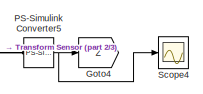
[diagram: root canvas - part 1/3, top right region]
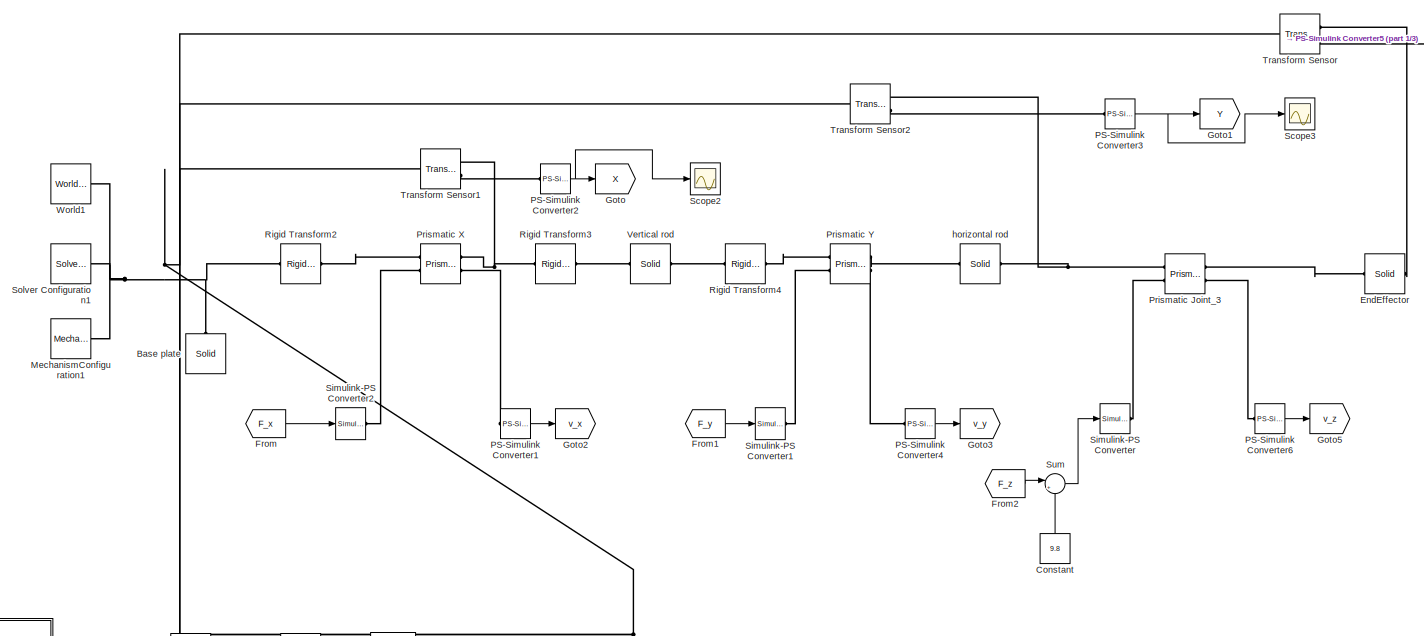
[diagram: root canvas - part 2/3, full width, top band]
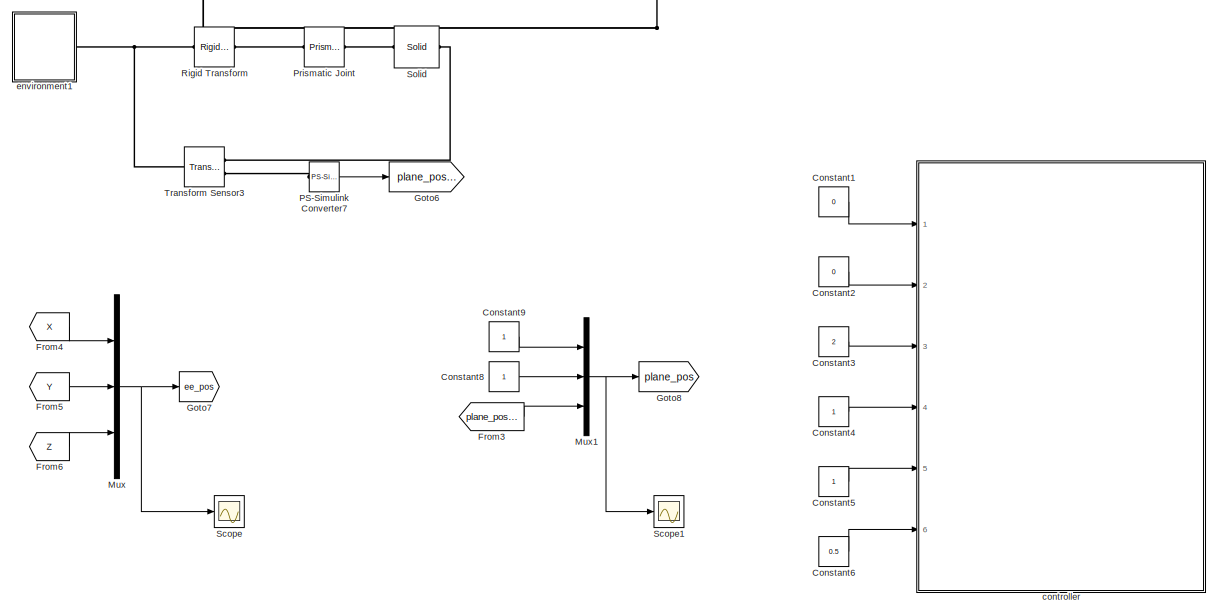
[diagram: root canvas - part 3/3, full width, bottom band]
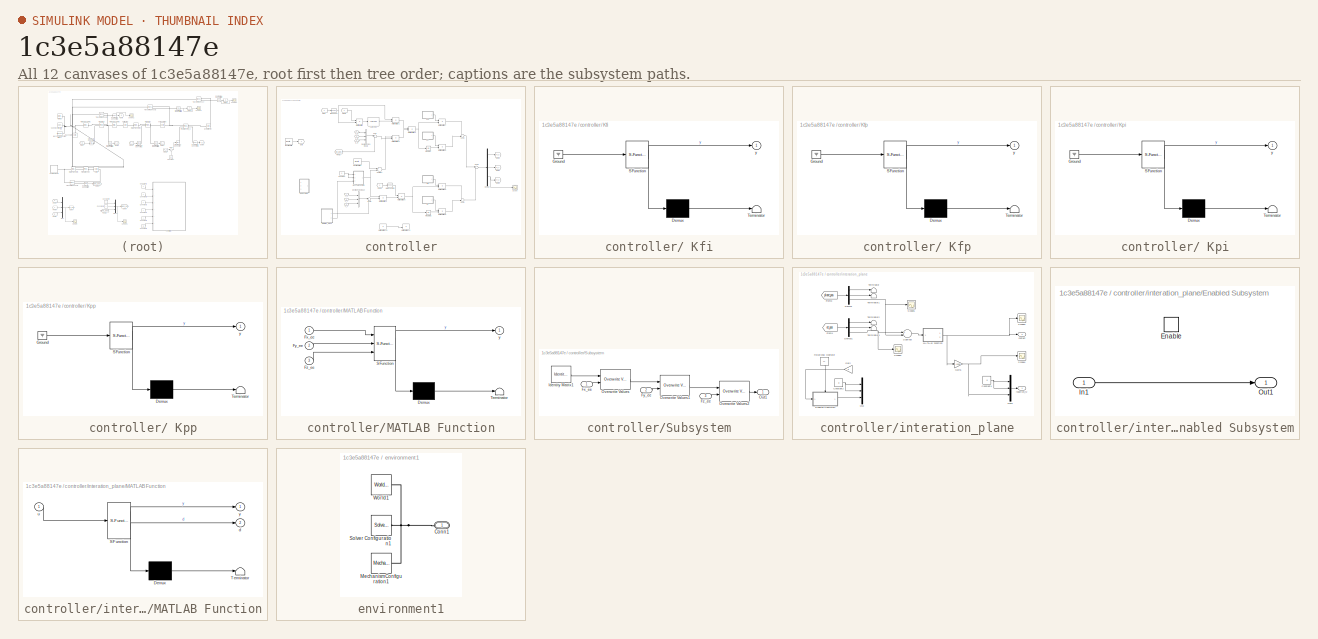
[diagram: thumbnail index - all 12 canvases of the model, root first then tree order]
MODEL slx_1c3e5a88147e
KIND model
CONFIG AbsTol = auto
CONFIG EnableMultiTasking = off
CONFIG FixedStep = auto
CONFIG MaxStep = auto
CONFIG MinStep = auto
CONFIG RelTol = 1e-3
CONFIG SampleTimeConstraint = Unconstrained
CONFIG Solver = VariableStepAuto
CONFIG SolverName = VariableStepAuto
CONFIG StartTime = 0.0
CONFIG StopTime = 30
BLOCK [Reference] Base plate   REF=sm_lib/Body Elements/Solid
  Ports = [0, 0, 0, 0, 0, 0, 1]
  SourceBlock = sm_lib/Body Elements/Solid
  SourceProductBaseCode = MS
  SourceProductName = Simscape Multibody
  SourceType = Solid
BLOCK [Constant] Constant
  Value = 9.8
BLOCK [Constant] Constant1
  Value = 0
BLOCK [Constant] Constant2
  Value = 0
BLOCK [Constant] Constant3
  Value = 2
BLOCK [Constant] Constant4
BLOCK [Constant] Constant5
BLOCK [Constant] Constant6
  Value = 0.5
BLOCK [Constant] Constant8
BLOCK [Constant] Constant9
BLOCK [Reference] EndEffector   REF=sm_lib/Body Elements/Solid
  Ports = [0, 0, 0, 0, 0, 1, 1]
  SourceBlock = sm_lib/Body Elements/Solid
  SourceProductBaseCode = MS
  SourceProductName = Simscape Multibody
  SourceType = Solid
BLOCK [From] From
  GotoTag = F_x
  TagVisibility = global
BLOCK [From] From1
  GotoTag = F_y
  TagVisibility = global
BLOCK [From] From2
  GotoTag = F_z
  TagVisibility = global
BLOCK [From] From3
  GotoTag = plane_pos_z
  TagVisibility = global
BLOCK [From] From4
  GotoTag = X
  TagVisibility = global
BLOCK [From] From5
  GotoTag = Y
  TagVisibility = global
BLOCK [From] From6
  GotoTag = Z
  TagVisibility = global
BLOCK [Goto] Goto
  GotoTag = X
  TagVisibility = global
BLOCK [Goto] Goto1
  GotoTag = Y
  TagVisibility = global
BLOCK [Goto] Goto2
  GotoTag = v_x
BLOCK [Goto] Goto3
  GotoTag = v_y
BLOCK [Goto] Goto4
  GotoTag = Z
  TagVisibility = global
BLOCK [Goto] Goto5
  GotoTag = v_z
BLOCK [Goto] Goto6
  GotoTag = plane_pos_z
  TagVisibility = global
BLOCK [Goto] Goto7
  GotoTag = ee_pos
  TagVisibility = global
BLOCK [Goto] Goto8
  GotoTag = plane_pos
  TagVisibility = global
BLOCK [Reference] MechanismConfiguration1  REF=sm_lib/Utilities/Mechanism
Configuration
  Ports = [0, 0, 0, 0, 0, 0, 1]
  SourceBlock = sm_lib/Utilities/Mechanism\nConfiguration
  SourceProductBaseCode = MS
  SourceProductName = Simscape Multibody
  SourceType = Mechanism\nConfiguration
BLOCK [Mux] Mux
  DisplayOption = bar
  Inputs = 3
  Ports = [3, 1]
BLOCK [Mux] Mux1
  DisplayOption = bar
  Inputs = 3
  Ports = [3, 1]
BLOCK [Reference] PS-Simulink Converter1  REF=nesl_utility/PS-Simulink
Converter
  Ports = [0, 1, 0, 0, 0, 1]
  SourceBlock = nesl_utility/PS-Simulink\nConverter
  SourceProductBaseCode = SS
  SourceProductName = Simscape
  SourceType = PS-Simulink\nConverter
BLOCK [Reference] PS-Simulink Converter2  REF=nesl_utility/PS-Simulink
Converter
  Ports = [0, 1, 0, 0, 0, 1]
  SourceBlock = nesl_utility/PS-Simulink\nConverter
  SourceProductBaseCode = SS
  SourceProductName = Simscape
  SourceType = PS-Simulink\nConverter
BLOCK [Reference] PS-Simulink Converter3  REF=nesl_utility/PS-Simulink
Converter
  Ports = [0, 1, 0, 0, 0, 1]
  SourceBlock = nesl_utility/PS-Simulink\nConverter
  SourceProductBaseCode = SS
  SourceProductName = Simscape
  SourceType = PS-Simulink\nConverter
BLOCK [Reference] PS-Simulink Converter4  REF=nesl_utility/PS-Simulink
Converter
  Ports = [0, 1, 0, 0, 0, 1]
  SourceBlock = nesl_utility/PS-Simulink\nConverter
  SourceProductBaseCode = SS
  SourceProductName = Simscape
  SourceType = PS-Simulink\nConverter
BLOCK [Reference] PS-Simulink Converter5  REF=nesl_utility/PS-Simulink
Converter
  Ports = [0, 1, 0, 0, 0, 1]
  SourceBlock = nesl_utility/PS-Simulink\nConverter
  SourceProductBaseCode = SS
  SourceProductName = Simscape
  SourceType = PS-Simulink\nConverter
BLOCK [Reference] PS-Simulink Converter6  REF=nesl_utility/PS-Simulink
Converter
  Ports = [0, 1, 0, 0, 0, 1]
  SourceBlock = nesl_utility/PS-Simulink\nConverter
  SourceProductBaseCode = SS
  SourceProductName = Simscape
  SourceType = PS-Simulink\nConverter
BLOCK [Reference] PS-Simulink Converter7  REF=nesl_utility/PS-Simulink
Converter
  Ports = [0, 1, 0, 0, 0, 1]
  SourceBlock = nesl_utility/PS-Simulink\nConverter
  SourceProductBaseCode = SS
  SourceProductName = Simscape
  SourceType = PS-Simulink\nConverter
BLOCK [Reference] Prismatic Joint  REF=sm_lib/Joints/Prismatic
Joint
  Ports = [0, 0, 0, 0, 0, 1, 1]
  SourceBlock = sm_lib/Joints/Prismatic\nJoint
  SourceProductBaseCode = MS
  SourceProductName = Simscape Multibody
  SourceType = Prismatic\nJoint
BLOCK [Reference] Prismatic Joint_3  REF=sm_lib/Joints/Prismatic
Joint
  Ports = [0, 0, 0, 0, 0, 2, 2]
  SourceBlock = sm_lib/Joints/Prismatic\nJoint
  SourceProductBaseCode = MS
  SourceProductName = Simscape Multibody
  SourceType = Prismatic\nJoint
BLOCK [Reference] Prismatic X  REF=sm_lib/Joints/Prismatic
Joint
  Ports = [0, 0, 0, 0, 0, 2, 2]
  SourceBlock = sm_lib/Joints/Prismatic\nJoint
  SourceProductBaseCode = MS
  SourceProductName = Simscape Multibody
  SourceType = Prismatic\nJoint
BLOCK [Reference] Prismatic Y   REF=sm_lib/Joints/Prismatic
Joint
  Ports = [0, 0, 0, 0, 0, 2, 2]
  SourceBlock = sm_lib/Joints/Prismatic\nJoint
  SourceProductBaseCode = MS
  SourceProductName = Simscape Multibody
  SourceType = Prismatic\nJoint
BLOCK [Reference] Rigid Transform  REF=sm_lib/Frames and
Transforms/Rigid
Transform
  Ports = [0, 0, 0, 0, 0, 1, 1]
  SourceBlock = sm_lib/Frames and\nTransforms/Rigid\nTransform
  SourceProductBaseCode = MS
  SourceProductName = Simscape Multibody
  SourceType = Rigid\nTransform
BLOCK [Reference] Rigid Transform2  REF=sm_lib/Frames and
Transforms/Rigid
Transform
  Ports = [0, 0, 0, 0, 0, 1, 1]
  SourceBlock = sm_lib/Frames and\nTransforms/Rigid\nTransform
  SourceProductBaseCode = MS
  SourceProductName = Simscape Multibody
  SourceType = Rigid\nTransform
BLOCK [Reference] Rigid Transform3  REF=sm_lib/Frames and
Transforms/Rigid
Transform
  Ports = [0, 0, 0, 0, 0, 1, 1]
  SourceBlock = sm_lib/Frames and\nTransforms/Rigid\nTransform
  SourceProductBaseCode = MS
  SourceProductName = Simscape Multibody
  SourceType = Rigid\nTransform
BLOCK [Reference] Rigid Transform4  REF=sm_lib/Frames and
Transforms/Rigid
Transform
  Ports = [0, 0, 0, 0, 0, 1, 1]
  SourceBlock = sm_lib/Frames and\nTransforms/Rigid\nTransform
  SourceProductBaseCode = MS
  SourceProductName = Simscape Multibody
  SourceType = Rigid\nTransform
BLOCK [Scope] Scope
  Floating = off
  NumInputPorts = 1
  Ports = [1]
  ScopeSpecificationString = Simulink.scopes.TimeScopeBlockCfg('CurrentConfiguration', extmgr.ConfigurationSet(extmgr.Configuration('Core','General UI',true),extmgr.Configuration('Core','Source UI',true),extmgr.Configuration('Sources','WiredSimulink',true,'DataLoggingVariableName','ScopeData1'),extmgr.Configuration('Visuals','Time Domain',true,'SerializedDisplays',{struct('MinYLimReal','-15287.83163','MaxYLimReal','7052.9009'...<+1457ch>
BLOCK [Scope] Scope1
  Floating = off
  NumInputPorts = 1
  Ports = [1]
  ScopeSpecificationString = Simulink.scopes.TimeScopeBlockCfg('CurrentConfiguration', extmgr.ConfigurationSet(extmgr.Configuration('Core','General UI',true),extmgr.Configuration('Core','Source UI',true),extmgr.Configuration('Sources','WiredSimulink',true,'DataLoggingVariableName','ScopeData2'),extmgr.Configuration('Visuals','Time Domain',true,'SerializedDisplays',{struct('MinYLimReal','0.43188','MaxYLimReal','1.06313','YLabe...<+1403ch>
BLOCK [Scope] Scope2
  Floating = off
  NumInputPorts = 1
  Ports = [1]
  ScopeSpecificationString = Simulink.scopes.TimeScopeBlockCfg('CurrentConfiguration', extmgr.ConfigurationSet(extmgr.Configuration('Core','General UI',true),extmgr.Configuration('Core','Source UI',true),extmgr.Configuration('Sources','WiredSimulink',true,'DataLoggingVariableName','ScopeData1'),extmgr.Configuration('Visuals','Time Domain',true,'SerializedDisplays',{struct('MinYLimReal','-15287.83163','MaxYLimReal','7052.9009'...<+1451ch>
BLOCK [Scope] Scope3
  Floating = off
  NumInputPorts = 1
  Ports = [1]
  ScopeSpecificationString = Simulink.scopes.TimeScopeBlockCfg('CurrentConfiguration', extmgr.ConfigurationSet(extmgr.Configuration('Core','General UI',true),extmgr.Configuration('Core','Source UI',true),extmgr.Configuration('Sources','WiredSimulink',true,'DataLoggingVariableName','ScopeData2'),extmgr.Configuration('Visuals','Time Domain',true,'SerializedDisplays',{struct('MinYLimReal','0.99999999999989','MaxYLimReal','1.0000...<+1521ch>
BLOCK [Scope] Scope4
  Floating = off
  NumInputPorts = 1
  Ports = [1]
  ScopeSpecificationString = Simulink.scopes.TimeScopeBlockCfg('CurrentConfiguration', extmgr.ConfigurationSet(extmgr.Configuration('Core','General UI',true),extmgr.Configuration('Core','Source UI',true),extmgr.Configuration('Sources','WiredSimulink',true,'DataLoggingVariableName','ScopeData3'),extmgr.Configuration('Visuals','Time Domain',true,'SerializedDisplays',{struct('MinYLimReal','-121.49756','MaxYLimReal','450.819','YL...<+1431ch>
BLOCK [Reference] Simulink-PS Converter  REF=nesl_utility/Simulink-PS
Converter
  Ports = [1, 0, 0, 0, 0, 0, 1]
  SourceBlock = nesl_utility/Simulink-PS\nConverter
  SourceProductBaseCode = SS
  SourceProductName = Simscape
  SourceType = Simulink-PS\nConverter
BLOCK [Reference] Simulink-PS Converter1  REF=nesl_utility/Simulink-PS
Converter
  Ports = [1, 0, 0, 0, 0, 0, 1]
  SourceBlock = nesl_utility/Simulink-PS\nConverter
  SourceProductBaseCode = SS
  SourceProductName = Simscape
  SourceType = Simulink-PS\nConverter
BLOCK [Reference] Simulink-PS Converter2  REF=nesl_utility/Simulink-PS
Converter
  Ports = [1, 0, 0, 0, 0, 0, 1]
  SourceBlock = nesl_utility/Simulink-PS\nConverter
  SourceProductBaseCode = SS
  SourceProductName = Simscape
  SourceType = Simulink-PS\nConverter
BLOCK [Reference] Solid  REF=sm_lib/Body Elements/Solid
  Ports = [0, 0, 0, 0, 0, 1, 1]
  SourceBlock = sm_lib/Body Elements/Solid
  SourceProductBaseCode = MS
  SourceProductName = Simscape Multibody
  SourceType = Solid
BLOCK [Reference] Solver Configuration1  REF=nesl_utility/Solver
Configuration
  Ports = [0, 0, 0, 0, 0, 0, 1]
  SourceBlock = nesl_utility/Solver\nConfiguration
  SourceProductBaseCode = SS
  SourceProductName = Simscape
  SourceType = Solver\nConfiguration
BLOCK [Sum] Sum
  IconShape = round
  InputSameDT = off
  Inputs = |++
  OutDataTypeStr = Inherit: Inherit via internal rule
  Ports = [2, 1]
  SaturateOnIntegerOverflow = off
BLOCK [Reference] Transform Sensor  REF=sm_lib/Frames and
Transforms/Transform
Sensor
  Ports = [0, 0, 0, 0, 0, 1, 2]
  SourceBlock = sm_lib/Frames and\nTransforms/Transform\nSensor
  SourceProductBaseCode = MS
  SourceProductName = Simscape Multibody
  SourceType = Transform\nSensor
BLOCK [Reference] Transform Sensor1  REF=sm_lib/Frames and
Transforms/Transform
Sensor
  Ports = [0, 0, 0, 0, 0, 1, 2]
  SourceBlock = sm_lib/Frames and\nTransforms/Transform\nSensor
  SourceProductBaseCode = MS
  SourceProductName = Simscape Multibody
  SourceType = Transform\nSensor
BLOCK [Reference] Transform Sensor2  REF=sm_lib/Frames and
Transforms/Transform
Sensor
  Ports = [0, 0, 0, 0, 0, 1, 2]
  SourceBlock = sm_lib/Frames and\nTransforms/Transform\nSensor
  SourceProductBaseCode = MS
  SourceProductName = Simscape Multibody
  SourceType = Transform\nSensor
BLOCK [Reference] Transform Sensor3  REF=sm_lib/Frames and
Transforms/Transform
Sensor
  Ports = [0, 0, 0, 0, 0, 1, 2]
  SourceBlock = sm_lib/Frames and\nTransforms/Transform\nSensor
  SourceProductBaseCode = MS
  SourceProductName = Simscape Multibody
  SourceType = Transform\nSensor
BLOCK [Reference] Vertical rod  REF=sm_lib/Body Elements/Solid
  Ports = [0, 0, 0, 0, 0, 1, 1]
  SourceBlock = sm_lib/Body Elements/Solid
  SourceProductBaseCode = MS
  SourceProductName = Simscape Multibody
  SourceType = Solid
BLOCK [Reference] World1  REF=sm_lib/Frames and
Transforms/World Frame
  Ports = [0, 0, 0, 0, 0, 0, 1]
  SourceBlock = sm_lib/Frames and\nTransforms/World Frame
  SourceProductBaseCode = MS
  SourceProductName = Simscape Multibody
  SourceType = World Frame
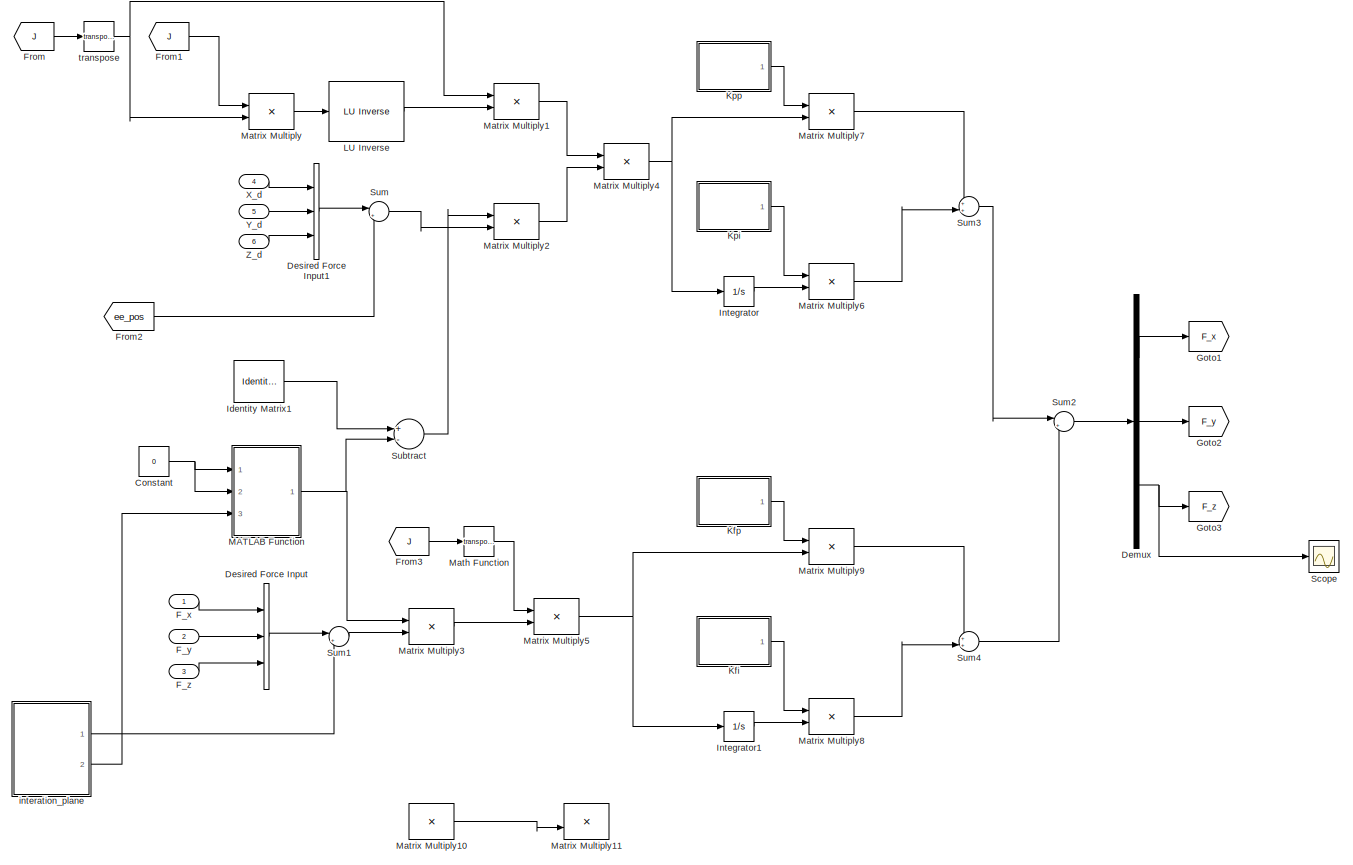
[diagram: controller - part 1/2, most of the canvas]
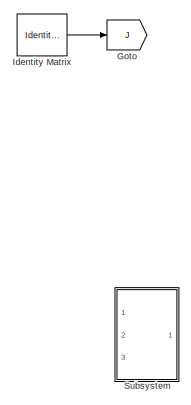
[diagram: controller - part 2/2, middle left region]
BLOCK [SubSystem] controller
  Ports = [6]
  RequestExecContextInheritance = off
BLOCK [SubSystem] controller/ Kfi
  ErrorFcn = Stateflow.Translate.translate
  PermitHierarchicalResolution = ExplicitOnly
  Ports = [0, 1]
  RequestExecContextInheritance = off
  SFBlockType = MATLAB Function
  TreatAsAtomicUnit = on
BLOCK [Demux] controller/ Kfi/ Demux 
  Outputs = 1
  Ports = [1, 1]
BLOCK [Ground] controller/ Kfi/ Ground 
BLOCK [S-Function] controller/ Kfi/ SFunction 
  EnableBusSupport = on
  FunctionName = sf_sfun
  PortCounts = [1 2]
  Ports = [1, 2]
  SFcnIsStateOwnerBlock = off
  SFunctionDeploymentMode = off
  Tag = Stateflow S-Function hybrid_Cartesian 4
BLOCK [Terminator] controller/ Kfi/ Terminator 
BLOCK [Outport] controller/ Kfi/y
  IconDisplay = Port number
BLOCK [SubSystem] controller/ Kfp
  ErrorFcn = Stateflow.Translate.translate
  PermitHierarchicalResolution = ExplicitOnly
  Ports = [0, 1]
  RequestExecContextInheritance = off
  SFBlockType = MATLAB Function
  TreatAsAtomicUnit = on
BLOCK [Demux] controller/ Kfp/ Demux 
  Outputs = 1
  Ports = [1, 1]
BLOCK [Ground] controller/ Kfp/ Ground 
BLOCK [S-Function] controller/ Kfp/ SFunction 
  EnableBusSupport = on
  FunctionName = sf_sfun
  PortCounts = [1 2]
  Ports = [1, 2]
  SFcnIsStateOwnerBlock = off
  SFunctionDeploymentMode = off
  Tag = Stateflow S-Function hybrid_Cartesian 5
BLOCK [Terminator] controller/ Kfp/ Terminator 
BLOCK [Outport] controller/ Kfp/y
  IconDisplay = Port number
BLOCK [SubSystem] controller/ Kpi
  ErrorFcn = Stateflow.Translate.translate
  PermitHierarchicalResolution = ExplicitOnly
  Ports = [0, 1]
  RequestExecContextInheritance = off
  SFBlockType = MATLAB Function
  TreatAsAtomicUnit = on
BLOCK [Demux] controller/ Kpi/ Demux 
  Outputs = 1
  Ports = [1, 1]
BLOCK [Ground] controller/ Kpi/ Ground 
BLOCK [S-Function] controller/ Kpi/ SFunction 
  EnableBusSupport = on
  FunctionName = sf_sfun
  PortCounts = [1 2]
  Ports = [1, 2]
  SFcnIsStateOwnerBlock = off
  SFunctionDeploymentMode = off
  Tag = Stateflow S-Function hybrid_Cartesian 3
BLOCK [Terminator] controller/ Kpi/ Terminator 
BLOCK [Outport] controller/ Kpi/y
  IconDisplay = Port number
BLOCK [SubSystem] controller/ Kpp
  ErrorFcn = Stateflow.Translate.translate
  PermitHierarchicalResolution = ExplicitOnly
  Ports = [0, 1]
  RequestExecContextInheritance = off
  SFBlockType = MATLAB Function
  TreatAsAtomicUnit = on
BLOCK [Demux] controller/ Kpp/ Demux 
  Outputs = 1
  Ports = [1, 1]
BLOCK [Ground] controller/ Kpp/ Ground 
BLOCK [S-Function] controller/ Kpp/ SFunction 
  EnableBusSupport = on
  FunctionName = sf_sfun
  PortCounts = [1 2]
  Ports = [1, 2]
  SFcnIsStateOwnerBlock = off
  SFunctionDeploymentMode = off
  Tag = Stateflow S-Function hybrid_Cartesian 1
BLOCK [Terminator] controller/ Kpp/ Terminator 
BLOCK [Outport] controller/ Kpp/y
  IconDisplay = Port number
BLOCK [Reference] controller/ LU Inverse  REF=dspinverses/ LU Inverse
  Ports = [1, 1]
  SourceBlock = dspinverses/ LU Inverse
  SourceProductBaseCode = DS
  SourceProductName = DSP System Toolbox
  SourceType = LU Inverse
BLOCK [Constant] controller/Constant
  Value = 0
BLOCK [Demux] controller/Demux
  DisplayOption = bar
  Outputs = 3
  Ports = [1, 3]
BLOCK [Concatenate] controller/Desired Force Input
  NumInputs = 3
  Ports = [3, 1]
BLOCK [Concatenate] controller/Desired Force Input1
  NumInputs = 3
  Ports = [3, 1]
BLOCK [Inport] controller/F_x
  IconDisplay = Port number
BLOCK [Inport] controller/F_y
  IconDisplay = Port number
  Port = 2
BLOCK [Inport] controller/F_z
  IconDisplay = Port number
  Port = 3
BLOCK [From] controller/From
  GotoTag = J
BLOCK [From] controller/From1
  GotoTag = J
BLOCK [From] controller/From2
  GotoTag = ee_pos
  TagVisibility = global
BLOCK [From] controller/From3
  GotoTag = J
BLOCK [Goto] controller/Goto
  GotoTag = J
BLOCK [Goto] controller/Goto1
  GotoTag = F_x
  TagVisibility = global
BLOCK [Goto] controller/Goto2
  GotoTag = F_y
  TagVisibility = global
BLOCK [Goto] controller/Goto3
  GotoTag = F_z
  TagVisibility = global
BLOCK [Reference] controller/Identity Matrix  REF=dspmtrx3/Identity Matrix
  Ports = [0, 1]
  SourceBlock = dspmtrx3/Identity Matrix
  SourceProductBaseCode = DS
  SourceProductName = DSP System Toolbox
  SourceType = Identity Matrix
BLOCK [Reference] controller/Identity Matrix1  REF=dspmtrx3/Identity Matrix
  Ports = [0, 1]
  SourceBlock = dspmtrx3/Identity Matrix
  SourceProductBaseCode = DS
  SourceProductName = DSP System Toolbox
  SourceType = Identity Matrix
BLOCK [Integrator] controller/Integrator
  Ports = [1, 1]
BLOCK [Integrator] controller/Integrator1
  Ports = [1, 1]
BLOCK [SubSystem] controller/MATLAB Function
  ErrorFcn = Stateflow.Translate.translate
  PermitHierarchicalResolution = ExplicitOnly
  Ports = [3, 1]
  RequestExecContextInheritance = off
  SFBlockType = MATLAB Function
  TreatAsAtomicUnit = on
BLOCK [Demux] controller/MATLAB Function/ Demux 
  Outputs = 1
  Ports = [1, 1]
BLOCK [S-Function] controller/MATLAB Function/ SFunction 
  EnableBusSupport = on
  FunctionName = sf_sfun
  PortCounts = [3 2]
  Ports = [3, 2]
  SFcnIsStateOwnerBlock = off
  SFunctionDeploymentMode = off
  Tag = Stateflow S-Function hybrid_Cartesian 6
BLOCK [Terminator] controller/MATLAB Function/ Terminator 
BLOCK [Inport] controller/MATLAB Function/Fx_ee
  IconDisplay = Port number
BLOCK [Inport] controller/MATLAB Function/Fy_ee
  IconDisplay = Port number
  Port = 2
BLOCK [Inport] controller/MATLAB Function/Fz_ee
  IconDisplay = Port number
  Port = 3
BLOCK [Outport] controller/MATLAB Function/y
  IconDisplay = Port number
BLOCK [Math] controller/Math Function
  Operator = transpose
  Ports = [1, 1]
BLOCK [Product] controller/Matrix Multiply
  InputSameDT = off
  Multiplication = Matrix(*)
  OutDataTypeStr = Inherit: Inherit via internal rule
  Ports = [2, 1]
  RndMeth = Floor
  SaturateOnIntegerOverflow = off
BLOCK [Product] controller/Matrix Multiply1
  InputSameDT = off
  Multiplication = Matrix(*)
  OutDataTypeStr = Inherit: Inherit via internal rule
  Ports = [2, 1]
  RndMeth = Floor
  SaturateOnIntegerOverflow = off
BLOCK [Product] controller/Matrix Multiply10
  Commented = on
  InputSameDT = off
  Multiplication = Matrix(*)
  OutDataTypeStr = Inherit: Inherit via internal rule
  Ports = [2, 1]
  RndMeth = Floor
  SaturateOnIntegerOverflow = off
BLOCK [Product] controller/Matrix Multiply11
  Commented = on
  InputSameDT = off
  Multiplication = Matrix(*)
  OutDataTypeStr = Inherit: Inherit via internal rule
  Ports = [2, 1]
  RndMeth = Floor
  SaturateOnIntegerOverflow = off
BLOCK [Product] controller/Matrix Multiply2
  InputSameDT = off
  Multiplication = Matrix(*)
  OutDataTypeStr = Inherit: Inherit via internal rule
  Ports = [2, 1]
  RndMeth = Floor
  SaturateOnIntegerOverflow = off
BLOCK [Product] controller/Matrix Multiply3
  InputSameDT = off
  Multiplication = Matrix(*)
  OutDataTypeStr = Inherit: Inherit via internal rule
  Ports = [2, 1]
  RndMeth = Floor
  SaturateOnIntegerOverflow = off
BLOCK [Product] controller/Matrix Multiply4
  InputSameDT = off
  Multiplication = Matrix(*)
  OutDataTypeStr = Inherit: Inherit via internal rule
  Ports = [2, 1]
  RndMeth = Floor
  SaturateOnIntegerOverflow = off
BLOCK [Product] controller/Matrix Multiply5
  InputSameDT = off
  Multiplication = Matrix(*)
  OutDataTypeStr = Inherit: Inherit via internal rule
  Ports = [2, 1]
  RndMeth = Floor
  SaturateOnIntegerOverflow = off
BLOCK [Product] controller/Matrix Multiply6
  InputSameDT = off
  Multiplication = Matrix(*)
  OutDataTypeStr = Inherit: Inherit via internal rule
  Ports = [2, 1]
  RndMeth = Floor
  SaturateOnIntegerOverflow = off
BLOCK [Product] controller/Matrix Multiply7
  InputSameDT = off
  Multiplication = Matrix(*)
  OutDataTypeStr = Inherit: Inherit via internal rule
  Ports = [2, 1]
  RndMeth = Floor
  SaturateOnIntegerOverflow = off
BLOCK [Product] controller/Matrix Multiply8
  InputSameDT = off
  Multiplication = Matrix(*)
  OutDataTypeStr = Inherit: Inherit via internal rule
  Ports = [2, 1]
  RndMeth = Floor
  SaturateOnIntegerOverflow = off
BLOCK [Product] controller/Matrix Multiply9
  InputSameDT = off
  Multiplication = Matrix(*)
  OutDataTypeStr = Inherit: Inherit via internal rule
  Ports = [2, 1]
  RndMeth = Floor
  SaturateOnIntegerOverflow = off
BLOCK [Scope] controller/Scope
  Floating = off
  NumInputPorts = 1
  Ports = [1]
  ScopeSpecificationString = Simulink.scopes.TimeScopeBlockCfg('CurrentConfiguration', extmgr.ConfigurationSet(extmgr.Configuration('Core','General UI',true),extmgr.Configuration('Core','Source UI',true),extmgr.Configuration('Sources','WiredSimulink',true,'DataLoggingVariableName','ScopeData5'),extmgr.Configuration('Visuals','Time Domain',true,'SerializedDisplays',{struct('MinYLimReal','-30879.38293','MaxYLimReal','114763.976...<+1400ch>
BLOCK [SubSystem] controller/Subsystem
  Commented = on
  Ports = [3, 1]
  RequestExecContextInheritance = off
BLOCK [Inport] controller/Subsystem/Fx_ee
  IconDisplay = Port number
BLOCK [Inport] controller/Subsystem/Fy_ee
  IconDisplay = Port number
  Port = 2
BLOCK [Inport] controller/Subsystem/Fz_ee
  IconDisplay = Port number
  Port = 3
BLOCK [Reference] controller/Subsystem/Identity Matrix1  REF=dspmtrx3/Identity Matrix
  Ports = [0, 1]
  SourceBlock = dspmtrx3/Identity Matrix
  SourceProductBaseCode = DS
  SourceProductName = DSP System Toolbox
  SourceType = Identity Matrix
BLOCK [Outport] controller/Subsystem/Out1
  IconDisplay = Port number
BLOCK [Reference] controller/Subsystem/Overwrite Values  REF=dspmtrx3/Overwrite Values
  Ports = [2, 1]
  SourceBlock = dspmtrx3/Overwrite Values
  SourceProductBaseCode = DS
  SourceProductName = DSP System Toolbox
  SourceType = Overwrite Values
BLOCK [Reference] controller/Subsystem/Overwrite Values1  REF=dspmtrx3/Overwrite Values
  Ports = [2, 1]
  SourceBlock = dspmtrx3/Overwrite Values
  SourceProductBaseCode = DS
  SourceProductName = DSP System Toolbox
  SourceType = Overwrite Values
BLOCK [Reference] controller/Subsystem/Overwrite Values2  REF=dspmtrx3/Overwrite Values
  Ports = [2, 1]
  SourceBlock = dspmtrx3/Overwrite Values
  SourceProductBaseCode = DS
  SourceProductName = DSP System Toolbox
  SourceType = Overwrite Values
BLOCK [Sum] controller/Subtract
  InputSameDT = off
  Inputs = +-
  OutDataTypeStr = Inherit: Inherit via internal rule
  Ports = [2, 1]
  SaturateOnIntegerOverflow = off
BLOCK [Sum] controller/Sum
  IconShape = round
  InputSameDT = off
  Inputs = |+-
  OutDataTypeStr = Inherit: Inherit via internal rule
  Ports = [2, 1]
  SaturateOnIntegerOverflow = off
BLOCK [Sum] controller/Sum1
  IconShape = round
  InputSameDT = off
  Inputs = |+-
  OutDataTypeStr = Inherit: Inherit via internal rule
  Ports = [2, 1]
  SaturateOnIntegerOverflow = off
BLOCK [Sum] controller/Sum2
  IconShape = round
  InputSameDT = off
  Inputs = |++
  OutDataTypeStr = Inherit: Inherit via internal rule
  Ports = [2, 1]
  SaturateOnIntegerOverflow = off
BLOCK [Sum] controller/Sum3
  IconShape = round
  InputSameDT = off
  Inputs = ++|
  OutDataTypeStr = Inherit: Inherit via internal rule
  Ports = [2, 1]
  SaturateOnIntegerOverflow = off
BLOCK [Sum] controller/Sum4
  IconShape = round
  InputSameDT = off
  Inputs = ++|
  OutDataTypeStr = Inherit: Inherit via internal rule
  Ports = [2, 1]
  SaturateOnIntegerOverflow = off
BLOCK [Inport] controller/X_d
  IconDisplay = Port number
  Port = 4
BLOCK [Inport] controller/Y_d
  IconDisplay = Port number
  Port = 5
BLOCK [Inport] controller/Z_d 
  IconDisplay = Port number
  Port = 6
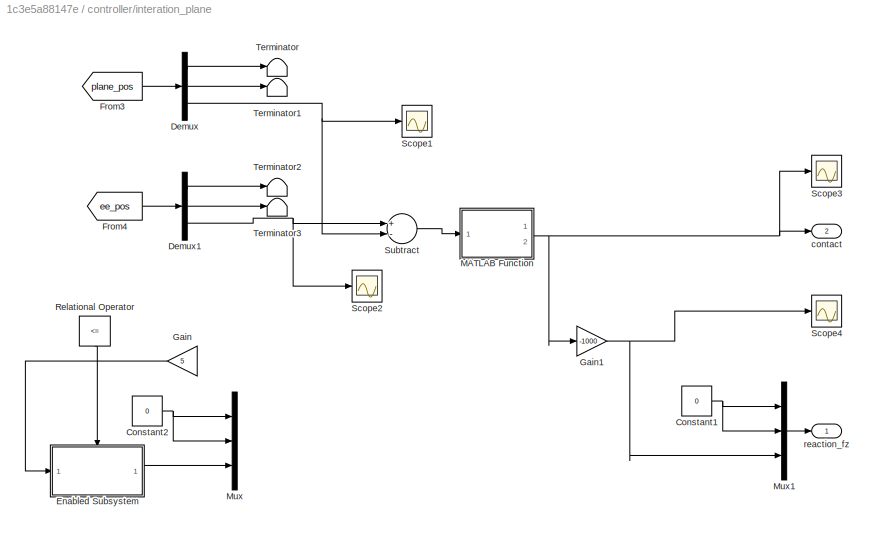
BLOCK [SubSystem] controller/interation_plane
  Ports = [0, 2]
  RequestExecContextInheritance = off
BLOCK [Constant] controller/interation_plane/Constant1
  Value = 0
BLOCK [Constant] controller/interation_plane/Constant2
  Commented = on
  Value = 0
BLOCK [Demux] controller/interation_plane/Demux
  DisplayOption = bar
  Outputs = 3
  Ports = [1, 3]
BLOCK [Demux] controller/interation_plane/Demux1
  DisplayOption = bar
  Outputs = 3
  Ports = [1, 3]
BLOCK [SubSystem] controller/interation_plane/Enabled Subsystem
  Commented = on
  Ports = [1, 1, 1]
  RequestExecContextInheritance = off
  TreatAsAtomicUnit = on
BLOCK [EnablePort] controller/interation_plane/Enabled Subsystem/Enable
  Ports = []
BLOCK [Inport] controller/interation_plane/Enabled Subsystem/In1
  IconDisplay = Port number
BLOCK [Outport] controller/interation_plane/Enabled Subsystem/Out1
  IconDisplay = Port number
BLOCK [From] controller/interation_plane/From3
  GotoTag = plane_pos
  TagVisibility = global
BLOCK [From] controller/interation_plane/From4
  GotoTag = ee_pos
  TagVisibility = global
BLOCK [Gain] controller/interation_plane/Gain
  Commented = on
  Gain = 5
  OutDataTypeStr = Inherit: Inherit via internal rule
  ParamDataTypeStr = Inherit: Inherit via internal rule
  SaturateOnIntegerOverflow = off
BLOCK [Gain] controller/interation_plane/Gain1
  Gain = -1000
  OutDataTypeStr = Inherit: Inherit via internal rule
  ParamDataTypeStr = Inherit: Inherit via internal rule
  SaturateOnIntegerOverflow = off
BLOCK [SubSystem] controller/interation_plane/MATLAB Function
  ErrorFcn = Stateflow.Translate.translate
  PermitHierarchicalResolution = ExplicitOnly
  Ports = [1, 2]
  RequestExecContextInheritance = off
  SFBlockType = MATLAB Function
  TreatAsAtomicUnit = on
BLOCK [Demux] controller/interation_plane/MATLAB Function/ Demux 
  Outputs = 1
  Ports = [1, 1]
BLOCK [S-Function] controller/interation_plane/MATLAB Function/ SFunction 
  EnableBusSupport = on
  FunctionName = sf_sfun
  PortCounts = [1 3]
  Ports = [1, 3]
  SFcnIsStateOwnerBlock = off
  SFunctionDeploymentMode = off
  Tag = Stateflow S-Function hybrid_Cartesian 2
BLOCK [Terminator] controller/interation_plane/MATLAB Function/ Terminator 
BLOCK [Outport] controller/interation_plane/MATLAB Function/d
  IconDisplay = Port number
  Port = 2
BLOCK [Inport] controller/interation_plane/MATLAB Function/u
  IconDisplay = Port number
BLOCK [Outport] controller/interation_plane/MATLAB Function/y
  IconDisplay = Port number
BLOCK [Mux] controller/interation_plane/Mux
  Commented = on
  DisplayOption = bar
  Inputs = 3
  Ports = [3, 1]
BLOCK [Mux] controller/interation_plane/Mux1
  DisplayOption = bar
  Inputs = 3
  Ports = [3, 1]
BLOCK [RelationalOperator] controller/interation_plane/Relational Operator
  Commented = on
  InputSameDT = off
  Operator = <=
  OutDataTypeStr = boolean
  Ports = [2, 1]
  RndMeth = Simplest
BLOCK [Scope] controller/interation_plane/Scope1
  Floating = off
  NumInputPorts = 1
  Ports = [1]
  ScopeSpecificationString = Simulink.scopes.TimeScopeBlockCfg('CurrentConfiguration', extmgr.ConfigurationSet(extmgr.Configuration('Core','General UI',true),extmgr.Configuration('Core','Source UI',true),extmgr.Configuration('Sources','WiredSimulink',true,'DataLoggingVariableName','ScopeData1'),extmgr.Configuration('Visuals','Time Domain',true,'SerializedDisplays',{struct('MinYLimReal','0.395','MaxYLimReal','0.595','YLabelRea...<+1348ch>
BLOCK [Scope] controller/interation_plane/Scope2
  Floating = off
  NumInputPorts = 1
  Ports = [1]
  ScopeSpecificationString = Simulink.scopes.TimeScopeBlockCfg('CurrentConfiguration', extmgr.ConfigurationSet(extmgr.Configuration('Core','General UI',true),extmgr.Configuration('Core','Source UI',true),extmgr.Configuration('Sources','WiredSimulink',true,'DataLoggingVariableName','ScopeData2'),extmgr.Configuration('Visuals','Time Domain',true,'SerializedDisplays',{struct('MinYLimReal','3.95718','MaxYLimReal','7.41401','YLabe...<+1384ch>
BLOCK [Scope] controller/interation_plane/Scope3
  Floating = off
  NumInputPorts = 1
  Ports = [1]
  ScopeSpecificationString = Simulink.scopes.TimeScopeBlockCfg('CurrentConfiguration', extmgr.ConfigurationSet(extmgr.Configuration('Core','General UI',true),extmgr.Configuration('Core','Source UI',true),extmgr.Configuration('Sources','WiredSimulink',true,'DataLoggingVariableName','ScopeData3'),extmgr.Configuration('Visuals','Time Domain',true,'SerializedDisplays',{struct('MinYLimReal','-0.125','MaxYLimReal','1.125','YLabelRe...<+1381ch>
BLOCK [Scope] controller/interation_plane/Scope4
  Floating = off
  NumInputPorts = 1
  Ports = [1]
  ScopeSpecificationString = Simulink.scopes.TimeScopeBlockCfg('CurrentConfiguration', extmgr.ConfigurationSet(extmgr.Configuration('Core','General UI',true),extmgr.Configuration('Core','Source UI',true),extmgr.Configuration('Sources','WiredSimulink',true,'DataLoggingVariableName','ScopeData4'),extmgr.Configuration('Visuals','Time Domain',true,'SerializedDisplays',{struct('MinYLimReal','-5.625','MaxYLimReal','0.625','YLabelRe...<+1371ch>
BLOCK [Sum] controller/interation_plane/Subtract
  InputSameDT = off
  Inputs = +-
  OutDataTypeStr = Inherit: Inherit via internal rule
  Ports = [2, 1]
  SaturateOnIntegerOverflow = off
BLOCK [Terminator] controller/interation_plane/Terminator
BLOCK [Terminator] controller/interation_plane/Terminator1
BLOCK [Terminator] controller/interation_plane/Terminator2
BLOCK [Terminator] controller/interation_plane/Terminator3
BLOCK [Outport] controller/interation_plane/contact
  IconDisplay = Port number
  Port = 2
BLOCK [Outport] controller/interation_plane/reaction_fz
  IconDisplay = Port number
BLOCK [Math] controller/transpose 
  Operator = transpose
  Ports = [1, 1]
BLOCK [SubSystem] environment1
  Ports = [0, 0, 0, 0, 0, 0, 1]
  RequestExecContextInheritance = off
BLOCK [PMIOPort] environment1/Conn1
  Side = Right
BLOCK [Reference] environment1/MechanismConfiguration1  REF=sm_lib/Utilities/Mechanism
Configuration
  Ports = [0, 0, 0, 0, 0, 0, 1]
  SourceBlock = sm_lib/Utilities/Mechanism\nConfiguration
  SourceProductBaseCode = MS
  SourceProductName = Simscape Multibody
  SourceType = Mechanism\nConfiguration
BLOCK [Reference] environment1/Solver Configuration1  REF=nesl_utility/Solver
Configuration
  Ports = [0, 0, 0, 0, 0, 0, 1]
  SourceBlock = nesl_utility/Solver\nConfiguration
  SourceProductBaseCode = SS
  SourceProductName = Simscape
  SourceType = Solver\nConfiguration
BLOCK [Reference] environment1/World1  REF=sm_lib/Frames and
Transforms/World Frame
  Ports = [0, 0, 0, 0, 0, 0, 1]
  SourceBlock = sm_lib/Frames and\nTransforms/World Frame
  SourceProductBaseCode = MS
  SourceProductName = Simscape Multibody
  SourceType = World Frame
BLOCK [Reference] horizontal rod  REF=sm_lib/Body Elements/Solid
  Ports = [0, 0, 0, 0, 0, 1, 1]
  SourceBlock = sm_lib/Body Elements/Solid
  SourceProductBaseCode = MS
  SourceProductName = Simscape Multibody
  SourceType = Solid
LINE Constant1:1 -> controller:1
LINE Constant2:1 -> controller:2
LINE Constant3:1 -> controller:3
LINE Constant4:1 -> controller:4
LINE Constant5:1 -> controller:5
LINE Constant6:1 -> controller:6
LINE Constant8:1 -> Mux1:2
LINE Constant9:1 -> Mux1:1
LINE Constant:1 -> Sum:2
LINE From1:1 -> Simulink-PS Converter1:1
LINE From2:1 -> Sum:1
LINE From3:1 -> Mux1:3
LINE From4:1 -> Mux:1
LINE From5:1 -> Mux:2
LINE From6:1 -> Mux:3
LINE From:1 -> Simulink-PS Converter2:1
NET Mux1:1 -> Goto8:1, Scope1:1
NET Mux:1 -> Goto7:1, Scope:1
LINE PS-Simulink Converter1:1 -> Goto2:1
NET PS-Simulink Converter2:1 -> Goto:1, Scope2:1
NET PS-Simulink Converter3:1 -> Goto1:1, Scope3:1
LINE PS-Simulink Converter4:1 -> Goto3:1
NET PS-Simulink Converter5:1 -> Goto4:1, Scope4:1
LINE PS-Simulink Converter6:1 -> Goto5:1
LINE PS-Simulink Converter7:1 -> Goto6:1
LINE Sum:1 -> Simulink-PS Converter:1
LINE controller/ Kfi:1 -> controller/Matrix Multiply8:1
LINE controller/ Kfp:1 -> controller/Matrix Multiply9:1
LINE controller/ Kpi:1 -> controller/Matrix Multiply6:1
LINE controller/ Kpp:1 -> controller/Matrix Multiply7:1
LINE controller/ LU Inverse:1 -> controller/Matrix Multiply1:2
NET controller/Constant:1 -> controller/MATLAB Function:1, controller/MATLAB Function:2
LINE controller/Demux:1 -> controller/Goto1:1
LINE controller/Demux:2 -> controller/Goto2:1
NET controller/Demux:3 -> controller/Goto3:1, controller/Scope:1
LINE controller/Desired Force Input1:1 -> controller/Sum:1
LINE controller/Desired Force Input:1 -> controller/Sum1:1
LINE controller/F_x:1 -> controller/Desired Force Input:1
LINE controller/F_y:1 -> controller/Desired Force Input:2
LINE controller/F_z:1 -> controller/Desired Force Input:3
LINE controller/From1:1 -> controller/Matrix Multiply:1
LINE controller/From2:1 -> controller/Sum:2
LINE controller/From3:1 -> controller/Math Function:1
LINE controller/From:1 -> controller/transpose :1
LINE controller/Identity Matrix1:1 -> controller/Subtract:1
LINE controller/Identity Matrix:1 -> controller/Goto:1
LINE controller/Integrator1:1 -> controller/Matrix Multiply8:2
LINE controller/Integrator:1 -> controller/Matrix Multiply6:2
NET controller/MATLAB Function:1 -> controller/Matrix Multiply3:1, controller/Subtract:2
LINE controller/Math Function:1 -> controller/Matrix Multiply5:1
LINE controller/Matrix Multiply10:1 -> controller/Matrix Multiply11:2
LINE controller/Matrix Multiply1:1 -> controller/Matrix Multiply4:1
LINE controller/Matrix Multiply2:1 -> controller/Matrix Multiply4:2
LINE controller/Matrix Multiply3:1 -> controller/Matrix Multiply5:2
NET controller/Matrix Multiply4:1 -> controller/Integrator:1, controller/Matrix Multiply7:2
NET controller/Matrix Multiply5:1 -> controller/Integrator1:1, controller/Matrix Multiply9:2
LINE controller/Matrix Multiply6:1 -> controller/Sum3:2
LINE controller/Matrix Multiply7:1 -> controller/Sum3:1
LINE controller/Matrix Multiply8:1 -> controller/Sum4:2
LINE controller/Matrix Multiply9:1 -> controller/Sum4:1
LINE controller/Matrix Multiply:1 -> controller/ LU Inverse:1
LINE controller/Subsystem/Fx_ee:1 -> controller/Subsystem/Overwrite Values:2
LINE controller/Subsystem/Fy_ee:1 -> controller/Subsystem/Overwrite Values1:2
LINE controller/Subsystem/Fz_ee:1 -> controller/Subsystem/Overwrite Values2:2
LINE controller/Subsystem/Identity Matrix1:1 -> controller/Subsystem/Overwrite Values:1
LINE controller/Subsystem/Overwrite Values1:1 -> controller/Subsystem/Overwrite Values2:1
LINE controller/Subsystem/Overwrite Values2:1 -> controller/Subsystem/Out1:1
LINE controller/Subsystem/Overwrite Values:1 -> controller/Subsystem/Overwrite Values1:1
LINE controller/Subtract:1 -> controller/Matrix Multiply2:1
LINE controller/Sum1:1 -> controller/Matrix Multiply3:2
LINE controller/Sum2:1 -> controller/Demux:1
LINE controller/Sum3:1 -> controller/Sum2:1
LINE controller/Sum4:1 -> controller/Sum2:2
LINE controller/Sum:1 -> controller/Matrix Multiply2:2
LINE controller/X_d:1 -> controller/Desired Force Input1:1
LINE controller/Y_d:1 -> controller/Desired Force Input1:2
LINE controller/Z_d :1 -> controller/Desired Force Input1:3
NET controller/interation_plane/Constant1:1 -> controller/interation_plane/Mux1:1, controller/interation_plane/Mux1:2
NET controller/interation_plane/Constant2:1 -> controller/interation_plane/Mux:1, controller/interation_plane/Mux:2
LINE controller/interation_plane/Demux1:1 -> controller/interation_plane/Terminator2:1
LINE controller/interation_plane/Demux1:2 -> controller/interation_plane/Terminator3:1
NET controller/interation_plane/Demux1:3 -> controller/interation_plane/Scope2:1, controller/interation_plane/Subtract:1
LINE controller/interation_plane/Demux:1 -> controller/interation_plane/Terminator:1
LINE controller/interation_plane/Demux:2 -> controller/interation_plane/Terminator1:1
NET controller/interation_plane/Demux:3 -> controller/interation_plane/Scope1:1, controller/interation_plane/Subtract:2
LINE controller/interation_plane/Enabled Subsystem/In1:1 -> controller/interation_plane/Enabled Subsystem/Out1:1
LINE controller/interation_plane/Enabled Subsystem:1 -> controller/interation_plane/Mux:3
LINE controller/interation_plane/From3:1 -> controller/interation_plane/Demux:1
LINE controller/interation_plane/From4:1 -> controller/interation_plane/Demux1:1
NET controller/interation_plane/Gain1:1 -> controller/interation_plane/Mux1:3, controller/interation_plane/Scope4:1
LINE controller/interation_plane/Gain:1 -> controller/interation_plane/Enabled Subsystem:1
NET controller/interation_plane/MATLAB Function:1 -> controller/interation_plane/Gain1:1, controller/interation_plane/Scope3:1, controller/interation_plane/contact:1
LINE controller/interation_plane/Mux1:1 -> controller/interation_plane/reaction_fz:1
LINE controller/interation_plane/Relational Operator:1 -> controller/interation_plane/Enabled Subsystem:enable
LINE controller/interation_plane/Subtract:1 -> controller/interation_plane/MATLAB Function:1
LINE controller/interation_plane:1 -> controller/Sum1:2
LINE controller/interation_plane:2 -> controller/MATLAB Function:3
NET controller/transpose :1 -> controller/Matrix Multiply1:1, controller/Matrix Multiply:2
PNET net1: Base plate :RConn1 -- MechanismConfiguration1:RConn1 -- Rigid Transform2:LConn1 -- Solver Configuration1:RConn1 -- Transform Sensor1:LConn1 -- Transform Sensor2:LConn1 -- Transform Sensor:LConn1 -- World1:RConn1
PLINE EndEffector :LConn1 -- Transform Sensor:RConn1
PLINE EndEffector :RConn1 -- Prismatic Joint_3:RConn1
PLINE PS-Simulink Converter1:LConn1 -- Prismatic X:RConn2
PLINE PS-Simulink Converter2:LConn1 -- Transform Sensor1:RConn2
PLINE PS-Simulink Converter3:LConn1 -- Transform Sensor2:RConn2
PLINE PS-Simulink Converter4:LConn1 -- Prismatic Y :RConn2
PLINE PS-Simulink Converter5:LConn1 -- Transform Sensor:RConn2
PLINE PS-Simulink Converter6:LConn1 -- Prismatic Joint_3:RConn2
PLINE PS-Simulink Converter7:LConn1 -- Transform Sensor3:RConn2
PLINE Prismatic Joint:LConn1 -- Rigid Transform:RConn1
PLINE Prismatic Joint:RConn1 -- Solid:LConn1
PNET net2: Prismatic Joint_3:LConn1 -- Transform Sensor2:RConn1 -- horizontal rod:LConn1
PLINE Prismatic Joint_3:LConn2 -- Simulink-PS Converter:RConn1
PLINE Prismatic X:LConn1 -- Rigid Transform2:RConn1
PLINE Prismatic X:LConn2 -- Simulink-PS Converter2:RConn1
PNET net3: Prismatic X:RConn1 -- Rigid Transform3:LConn1 -- Transform Sensor1:RConn1
PLINE Prismatic Y :LConn1 -- Rigid Transform4:RConn1
PLINE Prismatic Y :LConn2 -- Simulink-PS Converter1:RConn1
PLINE Prismatic Y :RConn1 -- horizontal rod:RConn1
PLINE Rigid Transform3:RConn1 -- Vertical rod:LConn1
PLINE Rigid Transform4:LConn1 -- Vertical rod:RConn1
PNET net4: Rigid Transform:LConn1 -- Transform Sensor3:LConn1 -- environment1:RConn1
PLINE Solid:RConn1 -- Transform Sensor3:RConn1
PNET net5: environment1/Conn1:RConn1 -- environment1/MechanismConfiguration1:RConn1 -- environment1/Solver Configuration1:RConn1 -- environment1/World1:RConn1
note: NET lines group one-source signal fan-out (src -> all destinations, sorted); 1:1 wires keep LINE; PNET lines group multi-terminal physical nets as a canonical sorted terminal list (undirected conserving connections); 2-terminal nets keep the pairwise PLINE form
CHART controller/ Kpp states=1 transitions=1
  STATE_LABEL 'eML_blk_kernel()'
  STATE_LABEL 'SCRIPT:\nfunction y = fcn()\n\ny = [10 0 0; 0 10 0; 0 0 10];\n'
CHART controller/interation_plane/MATLAB Function states=1 transitions=1
  STATE_LABEL 'eML_blk_kernel()'
  STATE_LABEL 'SCRIPT:\nfunction [y, d] = fcn(u)\nif u > 0\n    y = 0;\n    d = 0;\nelse\n    y = 1;\n    d = u;\nend\n'
CHART controller/ Kpi states=1 transitions=1
  STATE_LABEL 'eML_blk_kernel()'
  STATE_LABEL 'SCRIPT:\nfunction y = fcn()\n\ny = [10 0 0; 0 10 0; 0 0 10];\n'
CHART controller/ Kfi states=1 transitions=1
  STATE_LABEL 'eML_blk_kernel()'
  STATE_LABEL 'SCRIPT:\nfunction y = fcn()\n\ny = [10 0 0; 0 10 0; 0 0 10];\n'
CHART controller/ Kfp states=1 transitions=1
  STATE_LABEL 'eML_blk_kernel()'
  STATE_LABEL 'SCRIPT:\nfunction y = fcn()\n\ny = [100 0 0; 0 100 0; 0 0 100];\n'
CHART controller/MATLAB Function states=1 transitions=1
  STATE_LABEL 'eML_blk_kernel()'
  STATE_LABEL 'SCRIPT:\nfunction y = fcn(Fx_ee, Fy_ee, Fz_ee)\n\ny = [Fx_ee 0 0; 0 Fy_ee 0; 0 0 Fz_ee];\n'
